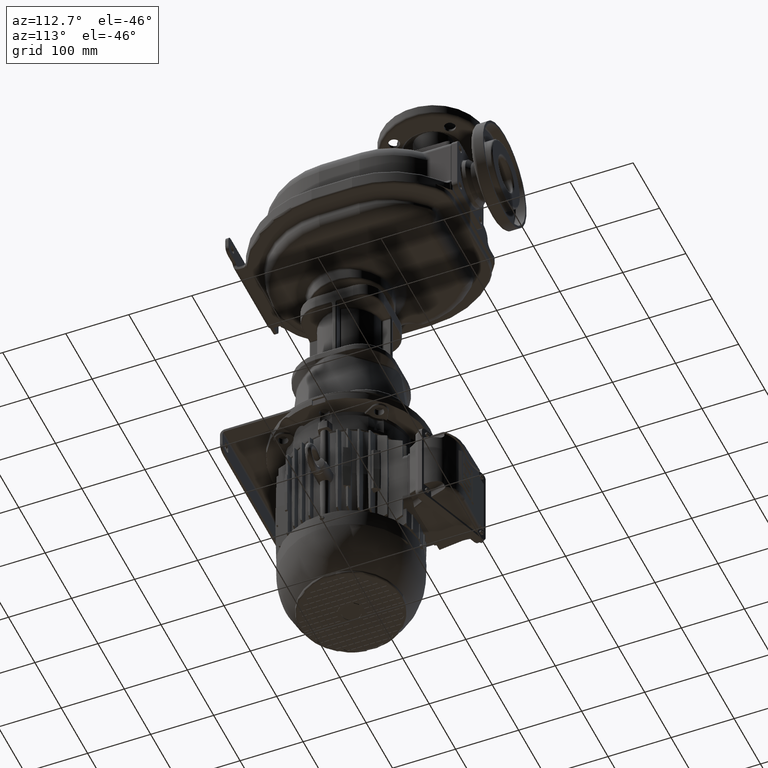
[diagram: clean part render]
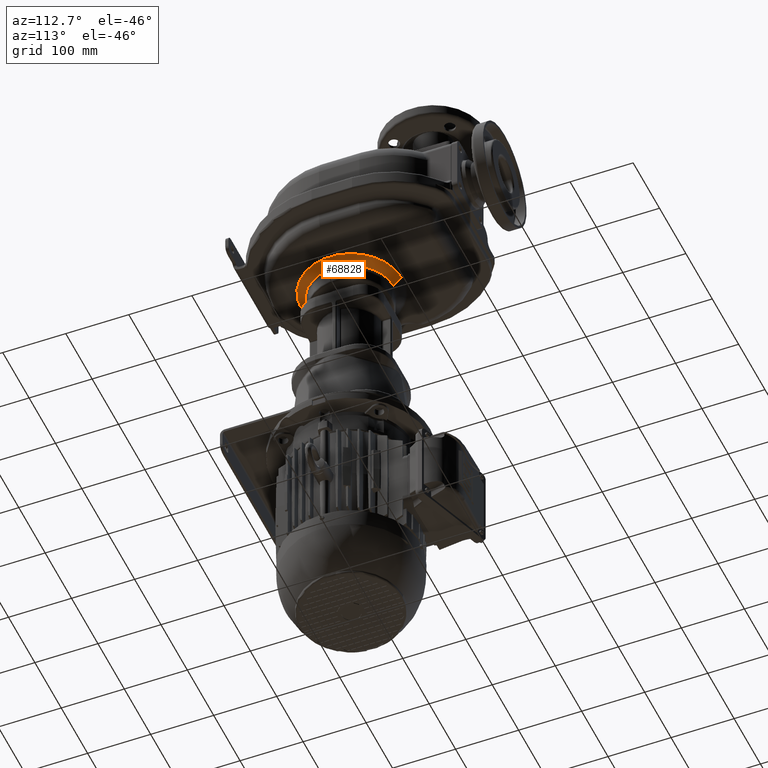
[diagram: same view with one face highlighted and labeled with its STEP entity id]
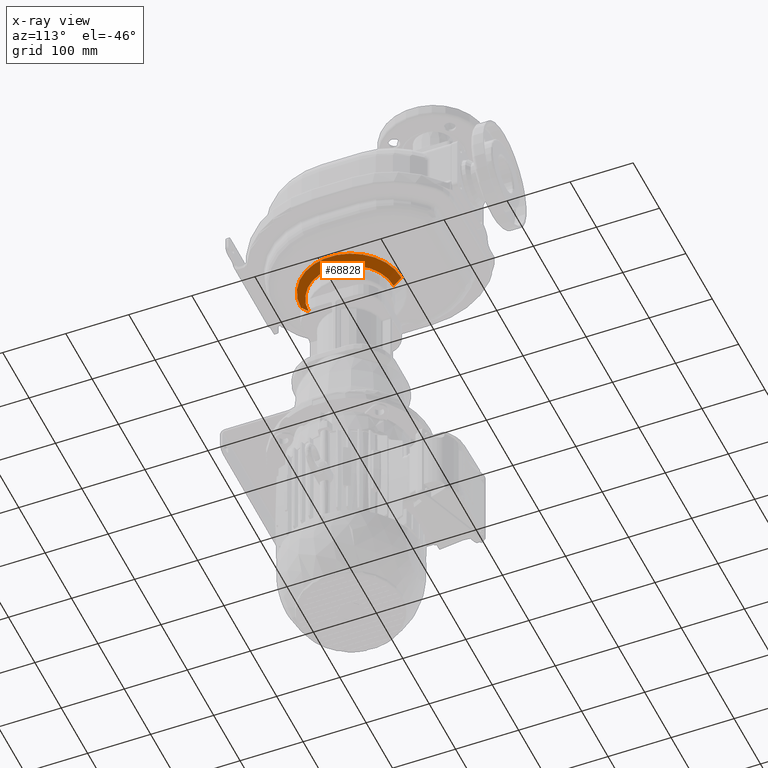
[diagram: x-ray of the same camera — body ghosted, the highlighted face saturated]
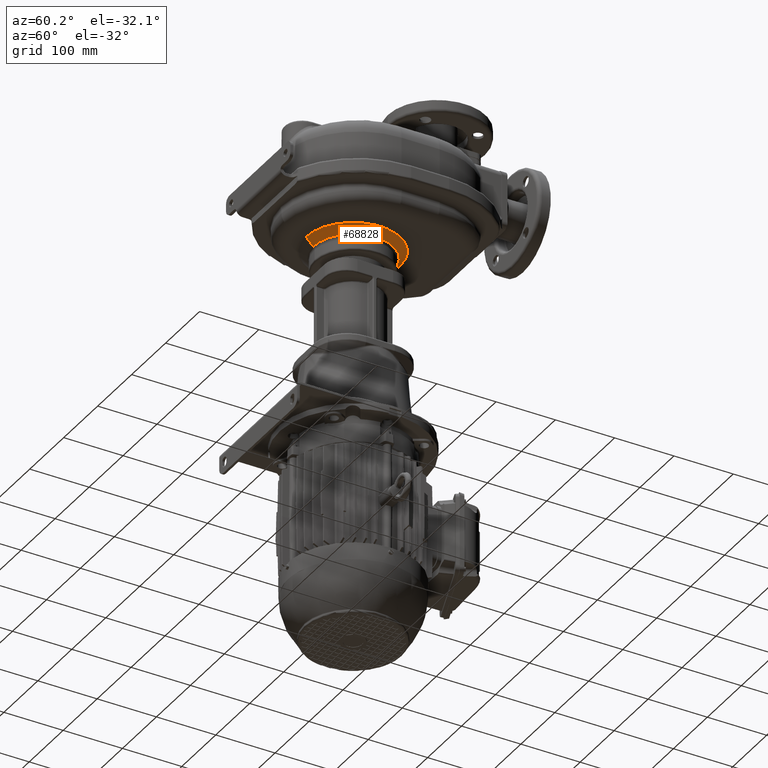
[diagram: same view with one face highlighted and labeled with its STEP entity id]
A machine part, auxiliary view. The second image highlights one B-rep face of the part: STEP entity #68828.
The next image is the same camera in x-ray: the body ghosted, the highlighted face saturated — about 0% of this face is hidden behind the body in this view.
A second angle (auxiliary view) of the same face is appended — the face is thin or edge-on in the first view.
In plain terms, the highlighted conical surface has half-angle 45 deg.
Its self-contained STEP definition (entity closure, byte-faithful):
#10558=DIRECTION('',(0.E0,-7.071067811865E-1,7.071067811865E-1));
#10559=VECTOR('',#10558,1.741421356237E1);
#10560=CARTESIAN_POINT('',(0.E0,9.265685424949E1,-8.915685424949E1));
#10561=LINE('',#10560,#10559);
#10567=DIRECTION('',(0.E0,7.071067811865E-1,7.071067811865E-1));
#10568=VECTOR('',#10567,1.741421356237E1);
#10569=CARTESIAN_POINT('',(0.E0,2.273431457505E2,-8.915685424949E1));
#10570=LINE('',#10569,#10568);
#16656=CARTESIAN_POINT('',(0.E0,1.6E2,-7.684314575051E1));
#16657=DIRECTION('',(0.E0,0.E0,-1.E0));
#16658=DIRECTION('',(0.E0,1.E0,0.E0));
#16659=AXIS2_PLACEMENT_3D('',#16656,#16657,#16658);
#16661=CARTESIAN_POINT('',(0.E0,1.6E2,-8.915685424949E1));
#16662=DIRECTION('',(0.E0,0.E0,-1.E0));
#16663=DIRECTION('',(0.E0,1.E0,0.E0));
#16664=AXIS2_PLACEMENT_3D('',#16661,#16662,#16663);
#39063=CARTESIAN_POINT('',(0.E0,2.396568542495E2,-7.684314575051E1));
#39064=CARTESIAN_POINT('',(0.E0,8.034314575051E1,-7.684314575051E1));
#39065=VERTEX_POINT('',#39063);
#39066=VERTEX_POINT('',#39064);
#39067=CARTESIAN_POINT('',(0.E0,2.273431457505E2,-8.915685424949E1));
#39068=CARTESIAN_POINT('',(0.E0,9.265685424949E1,-8.915685424949E1));
#39069=VERTEX_POINT('',#39067);
#39070=VERTEX_POINT('',#39068);
#68816=CARTESIAN_POINT('',(0.E0,1.6E2,-8.3E1));
#68817=DIRECTION('',(0.E0,0.E0,1.E0));
#68818=DIRECTION('',(0.E0,-1.E0,0.E0));
#68819=AXIS2_PLACEMENT_3D('',#68816,#68817,#68818);
#68820=CONICAL_SURFACE('',#68819,7.35E1,4.5E1);
#68821=ORIENTED_EDGE('',*,*,#68810,.F.);
#68822=ORIENTED_EDGE('',*,*,#59932,.F.);
#68824=ORIENTED_EDGE('',*,*,#68823,.T.);
#68825=ORIENTED_EDGE('',*,*,#59929,.T.);
#68826=EDGE_LOOP('',(#68821,#68822,#68824,#68825));
#68827=FACE_OUTER_BOUND('',#68826,.F.);
#68828=ADVANCED_FACE('',(#68827),#68820,.T.);
#16660=CIRCLE('',#16659,7.965685424949E1);
#16665=CIRCLE('',#16664,6.734314575051E1);
#59929=EDGE_CURVE('',#39070,#39066,#10561,.T.);
#59932=EDGE_CURVE('',#39069,#39065,#10570,.T.);
#68810=EDGE_CURVE('',#39065,#39066,#16660,.T.);
#68823=EDGE_CURVE('',#39069,#39070,#16665,.T.);